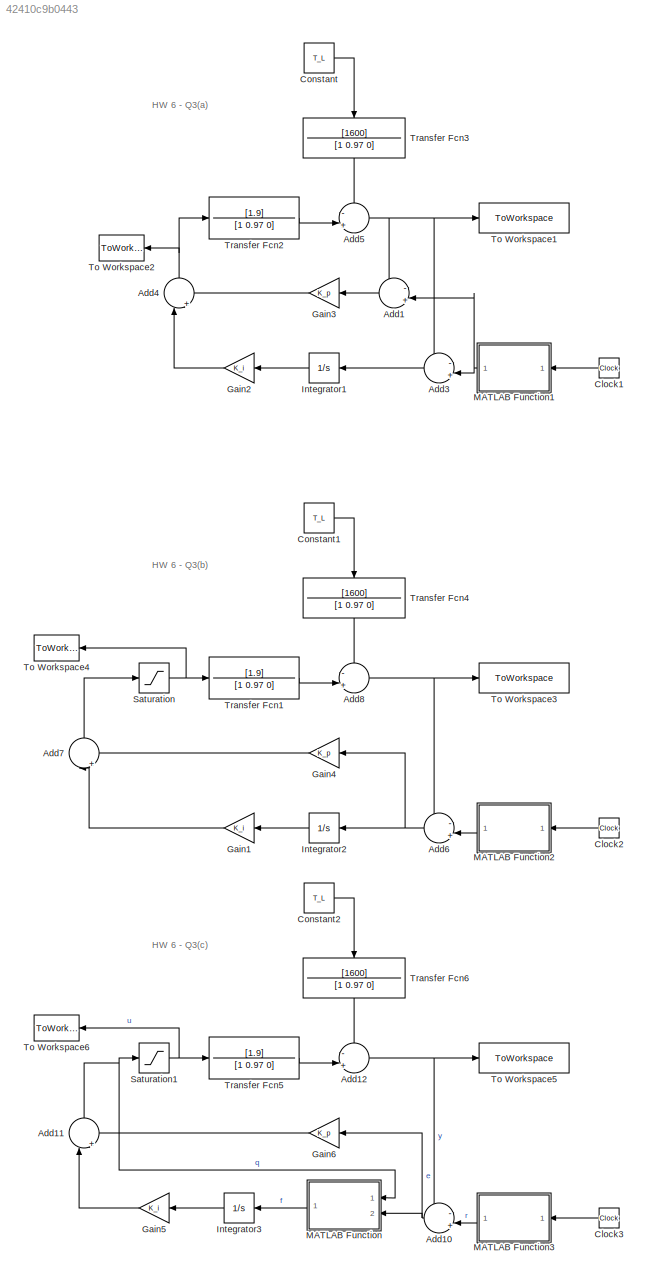
MODEL slx_42410c9b0443
KIND model
CONFIG AbsTol = auto
CONFIG EnableMultiTasking = off
CONFIG FixedStep = auto
CONFIG MaxStep = auto
CONFIG MinStep = auto
CONFIG RelTol = 1e-3
CONFIG SampleTimeConstraint = Unconstrained
CONFIG SolverName = VariableStepAuto
CONFIG StartTime = 0.0
CONFIG StopTime = time_end
BLOCK [Sum] Add1
  Inputs = -|+||
  NameLocation = top
  Ports = [2, 1]
BLOCK [Sum] Add10
  Inputs = -|+||
  NameLocation = top
  Ports = [2, 1]
BLOCK [Sum] Add11
  Inputs = ||+|+
  NameLocation = right
  Ports = [2, 1]
BLOCK [Sum] Add12
  Inputs = -|+||
  Ports = [2, 1]
BLOCK [Sum] Add3
  Inputs = -|+||
  NameLocation = top
  Ports = [2, 1]
BLOCK [Sum] Add4
  Inputs = ||+|+
  NameLocation = right
  Ports = [2, 1]
BLOCK [Sum] Add5
  Inputs = -|+||
  Ports = [2, 1]
BLOCK [Sum] Add6
  Inputs = -|+||
  NameLocation = top
  Ports = [2, 1]
BLOCK [Sum] Add7
  Inputs = ||+|+
  NameLocation = right
  Ports = [2, 1]
BLOCK [Sum] Add8
  Inputs = -|+||
  Ports = [2, 1]
BLOCK [Clock] Clock1
  NameLocation = top
BLOCK [Clock] Clock2
  NameLocation = top
BLOCK [Clock] Clock3
  NameLocation = top
BLOCK [Constant] Constant
  Value = T_L
BLOCK [Constant] Constant1
  Value = T_L
BLOCK [Constant] Constant2
  Value = T_L
BLOCK [Gain] Gain1
  Gain = K_i
  NameLocation = top
BLOCK [Gain] Gain2
  Gain = K_i
  NameLocation = top
BLOCK [Gain] Gain3
  Gain = K_p
  NameLocation = top
BLOCK [Gain] Gain4
  Gain = K_p
  NameLocation = top
BLOCK [Gain] Gain5
  Gain = K_i
  NameLocation = top
BLOCK [Gain] Gain6
  Gain = K_p
  NameLocation = top
BLOCK [Integrator] Integrator1
  NameLocation = top
  Ports = [1, 1]
BLOCK [Integrator] Integrator2
  NameLocation = top
  Ports = [1, 1]
BLOCK [Integrator] Integrator3
  NameLocation = top
  Ports = [1, 1]
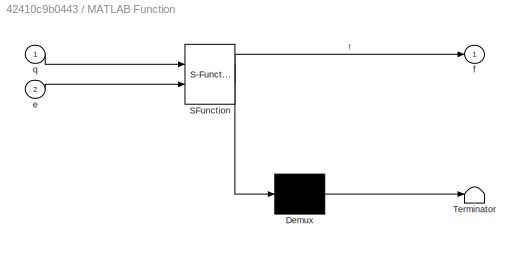
BLOCK [SubSystem] MATLAB Function
  ErrorFcn = Stateflow.Translate.translate
  PermitHierarchicalResolution = ExplicitOnly
  Ports = [2, 1]
  RequestExecContextInheritance = off
  SFBlockType = MATLAB Function
  TreatAsAtomicUnit = on
BLOCK [Demux] MATLAB Function/ Demux 
  Outputs = 1
  Ports = [1, 1]
BLOCK [S-Function] MATLAB Function/ SFunction 
  EnableBusSupport = on
  FunctionName = sf_sfun
  PortCounts = [2 2]
  Ports = [2, 2]
  SFcnIsStateOwnerBlock = off
  SFunctionDeploymentMode = off
  Tag = Stateflow S-Function 4
BLOCK [Terminator] MATLAB Function/ Terminator 
BLOCK [Inport] MATLAB Function/e
  Port = 2
BLOCK [Outport] MATLAB Function/f
BLOCK [Inport] MATLAB Function/q
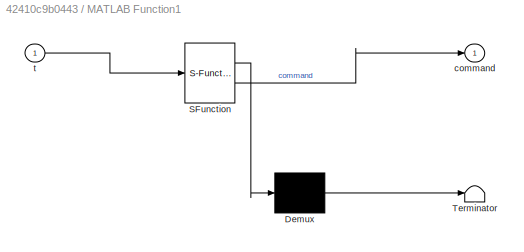
BLOCK [SubSystem] MATLAB Function1
  ErrorFcn = Stateflow.Translate.translate
  NameLocation = top
  PermitHierarchicalResolution = ExplicitOnly
  Ports = [1, 1]
  RequestExecContextInheritance = off
  SFBlockType = MATLAB Function
  TreatAsAtomicUnit = on
BLOCK [Demux] MATLAB Function1/ Demux 
  Outputs = 1
  Ports = [1, 1]
BLOCK [S-Function] MATLAB Function1/ SFunction 
  EnableBusSupport = on
  FunctionName = sf_sfun
  PortCounts = [1 2]
  Ports = [1, 2]
  SFcnIsStateOwnerBlock = off
  SFunctionDeploymentMode = off
  Tag = Stateflow S-Function 1
BLOCK [Terminator] MATLAB Function1/ Terminator 
BLOCK [Outport] MATLAB Function1/command
BLOCK [Inport] MATLAB Function1/t
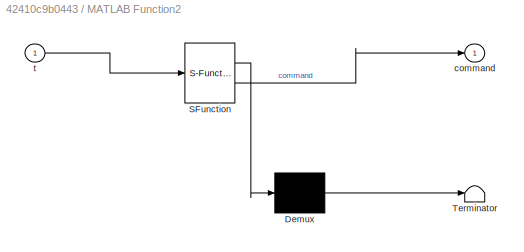
BLOCK [SubSystem] MATLAB Function2
  ErrorFcn = Stateflow.Translate.translate
  NameLocation = top
  PermitHierarchicalResolution = ExplicitOnly
  Ports = [1, 1]
  RequestExecContextInheritance = off
  SFBlockType = MATLAB Function
  TreatAsAtomicUnit = on
BLOCK [Demux] MATLAB Function2/ Demux 
  Outputs = 1
  Ports = [1, 1]
BLOCK [S-Function] MATLAB Function2/ SFunction 
  EnableBusSupport = on
  FunctionName = sf_sfun
  PortCounts = [1 2]
  Ports = [1, 2]
  SFcnIsStateOwnerBlock = off
  SFunctionDeploymentMode = off
  Tag = Stateflow S-Function 2
BLOCK [Terminator] MATLAB Function2/ Terminator 
BLOCK [Outport] MATLAB Function2/command
BLOCK [Inport] MATLAB Function2/t
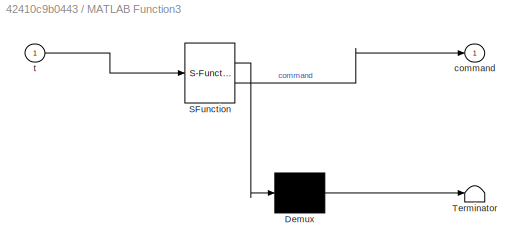
BLOCK [SubSystem] MATLAB Function3
  ErrorFcn = Stateflow.Translate.translate
  NameLocation = top
  PermitHierarchicalResolution = ExplicitOnly
  Ports = [1, 1]
  RequestExecContextInheritance = off
  SFBlockType = MATLAB Function
  TreatAsAtomicUnit = on
BLOCK [Demux] MATLAB Function3/ Demux 
  Outputs = 1
  Ports = [1, 1]
BLOCK [S-Function] MATLAB Function3/ SFunction 
  EnableBusSupport = on
  FunctionName = sf_sfun
  PortCounts = [1 2]
  Ports = [1, 2]
  SFcnIsStateOwnerBlock = off
  SFunctionDeploymentMode = off
  Tag = Stateflow S-Function 3
BLOCK [Terminator] MATLAB Function3/ Terminator 
BLOCK [Outport] MATLAB Function3/command
BLOCK [Inport] MATLAB Function3/t
BLOCK [Saturate] Saturation
  LowerLimit = -0.15
  UpperLimit = 0.15
BLOCK [Saturate] Saturation1
  LowerLimit = -0.15
  UpperLimit = 0.15
BLOCK [ToWorkspace] To Workspace1
  FixptAsFi = on
  MaxDataPoints = inf
  Ports = [1]
  SampleTime = -1
  SaveFormat = Timeseries
  VariableName = theta_a
BLOCK [ToWorkspace] To Workspace2
  FixptAsFi = on
  MaxDataPoints = inf
  NameLocation = top
  Ports = [1]
  SampleTime = -1
  SaveFormat = Timeseries
  VariableName = u_a
BLOCK [ToWorkspace] To Workspace3
  FixptAsFi = on
  MaxDataPoints = inf
  Ports = [1]
  SampleTime = -1
  SaveFormat = Timeseries
  VariableName = theta_b
BLOCK [ToWorkspace] To Workspace4
  FixptAsFi = on
  MaxDataPoints = inf
  NameLocation = top
  Ports = [1]
  SampleTime = -1
  SaveFormat = Timeseries
  VariableName = u_b
BLOCK [ToWorkspace] To Workspace5
  FixptAsFi = on
  MaxDataPoints = inf
  Ports = [1]
  SampleTime = -1
  SaveFormat = Timeseries
  VariableName = theta_c
BLOCK [ToWorkspace] To Workspace6
  FixptAsFi = on
  MaxDataPoints = inf
  NameLocation = top
  Ports = [1]
  SampleTime = -1
  SaveFormat = Timeseries
  VariableName = u_c
BLOCK [TransferFcn] Transfer Fcn1
  Denominator = [1 0.97 0]
  Numerator = [1.9]
BLOCK [TransferFcn] Transfer Fcn2
  Denominator = [1 0.97 0]
  Numerator = [1.9]
BLOCK [TransferFcn] Transfer Fcn3
  Denominator = [1 0.97 0]
  NameLocation = left
  Numerator = [1600]
BLOCK [TransferFcn] Transfer Fcn4
  Denominator = [1 0.97 0]
  NameLocation = left
  Numerator = [1600]
BLOCK [TransferFcn] Transfer Fcn5
  Denominator = [1 0.97 0]
  Numerator = [1.9]
BLOCK [TransferFcn] Transfer Fcn6
  Denominator = [1 0.97 0]
  NameLocation = left
  Numerator = [1600]
ANNOTATION (root): HW 6 - Q3(a)
ANNOTATION (root): HW 6 - Q3(b)
ANNOTATION (root): HW 6 - Q3(c)
NET Add10:1 -> Gain6:1, MATLAB Function:2
NET Add11:1 -> MATLAB Function:1, Saturation1:1
NET Add12:1 -> Add10:1, To Workspace5:1
LINE Add1:1 -> Gain3:1
LINE Add3:1 -> Integrator1:1
NET Add4:1 -> To Workspace2:1, Transfer Fcn2:1
NET Add5:1 -> Add1:1, Add3:1, To Workspace1:1
NET Add6:1 -> Gain4:1, Integrator2:1
LINE Add7:1 -> Saturation:1
NET Add8:1 -> Add6:1, To Workspace3:1
LINE Clock1:1 -> MATLAB Function1:1
LINE Clock2:1 -> MATLAB Function2:1
LINE Clock3:1 -> MATLAB Function3:1
LINE Constant1:1 -> Transfer Fcn4:1
LINE Constant2:1 -> Transfer Fcn6:1
LINE Constant:1 -> Transfer Fcn3:1
LINE Gain1:1 -> Add7:1
LINE Gain2:1 -> Add4:1
LINE Gain3:1 -> Add4:2
LINE Gain4:1 -> Add7:2
LINE Gain5:1 -> Add11:1
LINE Gain6:1 -> Add11:2
LINE Integrator1:1 -> Gain2:1
LINE Integrator2:1 -> Gain1:1
LINE Integrator3:1 -> Gain5:1
NET MATLAB Function1:1 -> Add1:2, Add3:2
LINE MATLAB Function2:1 -> Add6:2
LINE MATLAB Function3:1 -> Add10:2
LINE MATLAB Function:1 -> Integrator3:1
NET Saturation1:1 -> To Workspace6:1, Transfer Fcn5:1
NET Saturation:1 -> To Workspace4:1, Transfer Fcn1:1
LINE Transfer Fcn1:1 -> Add8:2
LINE Transfer Fcn2:1 -> Add5:2
LINE Transfer Fcn3:1 -> Add5:1
LINE Transfer Fcn4:1 -> Add8:1
LINE Transfer Fcn5:1 -> Add12:2
LINE Transfer Fcn6:1 -> Add12:1
note: NET lines group one-source signal fan-out (src -> all destinations, sorted); 1:1 wires keep LINE
CHART MATLAB Function2 states=1 transitions=1
  STATE_LABEL 'eML_blk_kernel()'
  STATE_LABEL 'SCRIPT:\nfunction command = reference(t)\nif (0 <= t) && (t <= 2)\n    r = 0;\nelse\n    r = 1.0;    % radians\nend\ncommand = r;\n'
CHART MATLAB Function3 states=1 transitions=1
  STATE_LABEL 'eML_blk_kernel()'
  STATE_LABEL 'SCRIPT:\nfunction command = reference(t)\nif (0 <= t) && (t <= 2)\n    r = 0;\nelse\n    r = 1.0;    % radians\nend\ncommand = r;\n'
CHART MATLAB Function states=1 transitions=1
  STATE_LABEL 'eML_blk_kernel()'
  STATE_LABEL 'SCRIPT:\nfunction f = antiWindup(q, e)\n% Actuator Saturation is at +/- 0.15 volts.\nif (q >= 0.15) && (e > 0)\n    output = 0;\nelseif (q <= -0.15) && (e < 0)\n    output = 0;\nelse\n    output = e;\nend\n\nf = output;\n'
CHART MATLAB Function1 states=1 transitions=1
  STATE_LABEL 'eML_blk_kernel()'
  STATE_LABEL 'SCRIPT:\nfunction command = reference(t)\nif (0 <= t) && (t <= 2)\n    r = 0;\nelse\n    r = 1.0;    % radians\nend\ncommand = r;\n'
CHART  states=0 transitions=0
CHART  states=0 transitions=0
CHART  states=0 transitions=0
CHART  states=0 transitions=0
